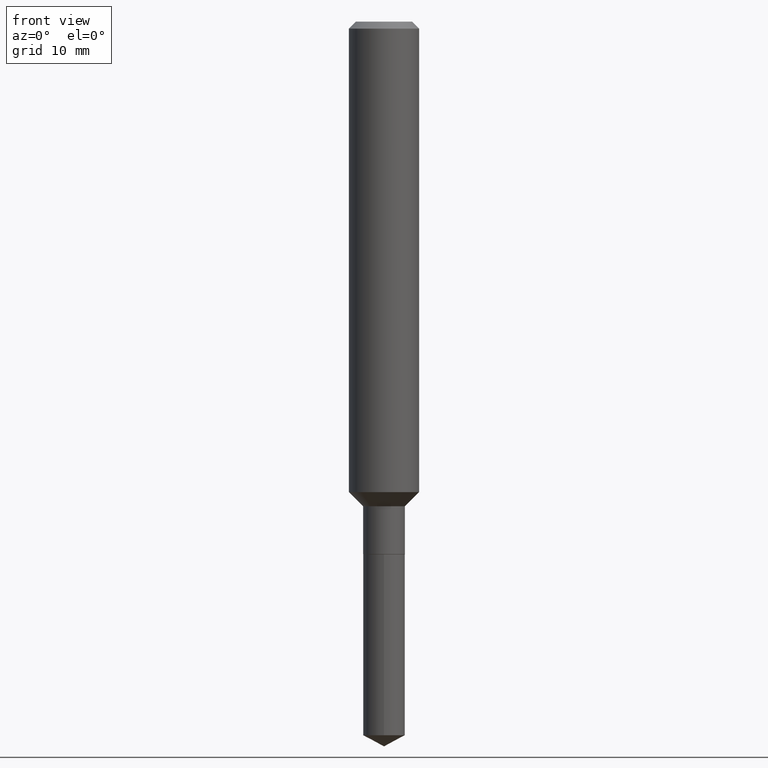
[diagram: clean part render]
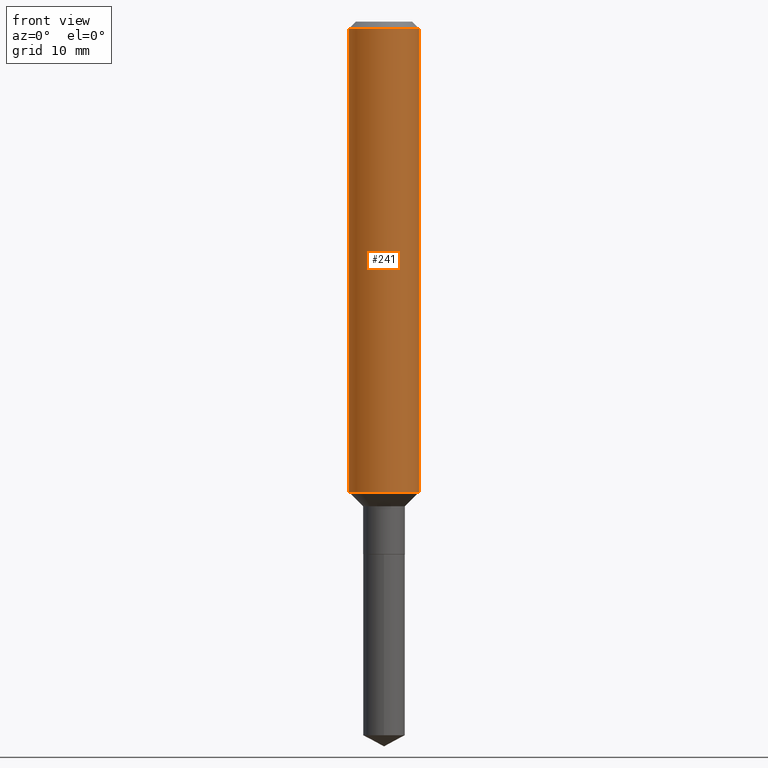
[diagram: same view with one face highlighted and labeled with its STEP entity id]
A machine part, front view. The second image highlights one B-rep face of the part: STEP entity #241.
In plain terms, the highlighted cylindrical surface (edge-blend (fillet) strip) has radius 2.9997 mm, axis along (-0, 0, 1).
Its self-contained STEP definition (entity closure, byte-faithful):
#13 = CARTESIAN_POINT ( 'NONE',  ( 0.1180999999999999966, -9.071566814582237199E-16, -0.02362000000000013741 ) ) ;
#17 = CARTESIAN_POINT ( 'NONE',  ( 0.1181000000000001909, -6.357289221765599043E-15, -1.584600000000000453 ) ) ;
#33 = VECTOR ( 'NONE', #380, 39.37007874015748143 ) ;
#61 = CARTESIAN_POINT ( 'NONE',  ( 0.1181000000000001077, -8.246878922347488542E-16, 5.758764772215005345E-30 ) ) ;
#84 = CARTESIAN_POINT ( 'NONE',  ( -0.1180999999999999966, -1.968384088444482555E-15, -0.02362000000000013741 ) ) ;
#88 = CYLINDRICAL_SURFACE ( 'NONE', #261, 0.1181000000000001077 ) ;
#102 = CIRCLE ( 'NONE', #373, 0.1180999999999999966 ) ;
#106 = EDGE_CURVE ( 'NONE', #313, #333, #343, .T. ) ;
#119 = DIRECTION ( 'NONE',  ( -2.445468806185136597E-29, 3.491481338843145583E-15, 1.000000000000000000 ) ) ;
#147 = CARTESIAN_POINT ( 'NONE',  ( 5.776197320209326656E-31, -8.246878922347558061E-17, -0.02362000000000013741 ) ) ;
#180 = ORIENTED_EDGE ( 'NONE', *, *, #432, .T. ) ;
#186 = EDGE_CURVE ( 'NONE', #333, #348, #102, .T. ) ;
#231 = DIRECTION ( 'NONE',  ( 1.000000000000000000, -6.982962677686266711E-15, 4.876176775795935793E-29 ) ) ;
#233 = CIRCLE ( 'NONE', #460, 0.1181000000000001909 ) ;
#241 = ADVANCED_FACE ( 'NONE', ( #273 ), #88, .T. ) ;
#247 = CARTESIAN_POINT ( 'NONE',  ( 3.875089870280967892E-29, -5.532601329530849202E-15, -1.584600000000000453 ) ) ;
#251 = ORIENTED_EDGE ( 'NONE', *, *, #186, .F. ) ;
#261 = AXIS2_PLACEMENT_3D ( 'NONE', #383, #422, #231 ) ;
#273 = FACE_OUTER_BOUND ( 'NONE', #433, .T. ) ;
#277 = ORIENTED_EDGE ( 'NONE', *, *, #411, .T. ) ;
#303 = DIRECTION ( 'NONE',  ( 1.000000000000000000, -6.982962677686266711E-15, 0.000000000000000000 ) ) ;
#308 = CARTESIAN_POINT ( 'NONE',  ( -0.1181000000000001909, -4.693450358598171005E-15, -1.584600000000000453 ) ) ;
#309 = ORIENTED_EDGE ( 'NONE', *, *, #106, .F. ) ;
#313 = VERTEX_POINT ( 'NONE', #308 ) ;
#317 = VERTEX_POINT ( 'NONE', #17 ) ;
#322 = DIRECTION ( 'NONE',  ( 1.000000000000000000, -6.982962677686269077E-15, 0.000000000000000000 ) ) ;
#325 = LINE ( 'NONE', #61, #401 ) ;
#333 = VERTEX_POINT ( 'NONE', #84 ) ;
#343 = LINE ( 'NONE', #376, #33 ) ;
#348 = VERTEX_POINT ( 'NONE', #13 ) ;
#373 = AXIS2_PLACEMENT_3D ( 'NONE', #147, #119, #303 ) ;
#376 = CARTESIAN_POINT ( 'NONE',  ( -0.1181000000000001077, 8.391509709326790846E-16, -5.809262341591049389E-30 ) ) ;
#380 = DIRECTION ( 'NONE',  ( -2.445468806185136877E-29, 3.491481338843145188E-15, 1.000000000000000000 ) ) ;
#383 = CARTESIAN_POINT ( 'NONE',  ( 0.000000000000000000, 0.000000000000000000, 0.000000000000000000 ) ) ;
#401 = VECTOR ( 'NONE', #436, 39.37007874015748143 ) ;
#411 = EDGE_CURVE ( 'NONE', #317, #348, #325, .T. ) ;
#422 = DIRECTION ( 'NONE',  ( -2.445468806185136597E-29, 3.491481338843145583E-15, 1.000000000000000000 ) ) ;
#432 = EDGE_CURVE ( 'NONE', #313, #317, #233, .T. ) ;
#433 = EDGE_LOOP ( 'NONE', ( #309, #180, #277, #251 ) ) ;
#436 = DIRECTION ( 'NONE',  ( -2.445468806185136877E-29, 3.491481338843145188E-15, 1.000000000000000000 ) ) ;
#460 = AXIS2_PLACEMENT_3D ( 'NONE', #247, #477, #322 ) ;
#477 = DIRECTION ( 'NONE',  ( -2.445468806185136597E-29, 3.491481338843145583E-15, 1.000000000000000000 ) ) ;